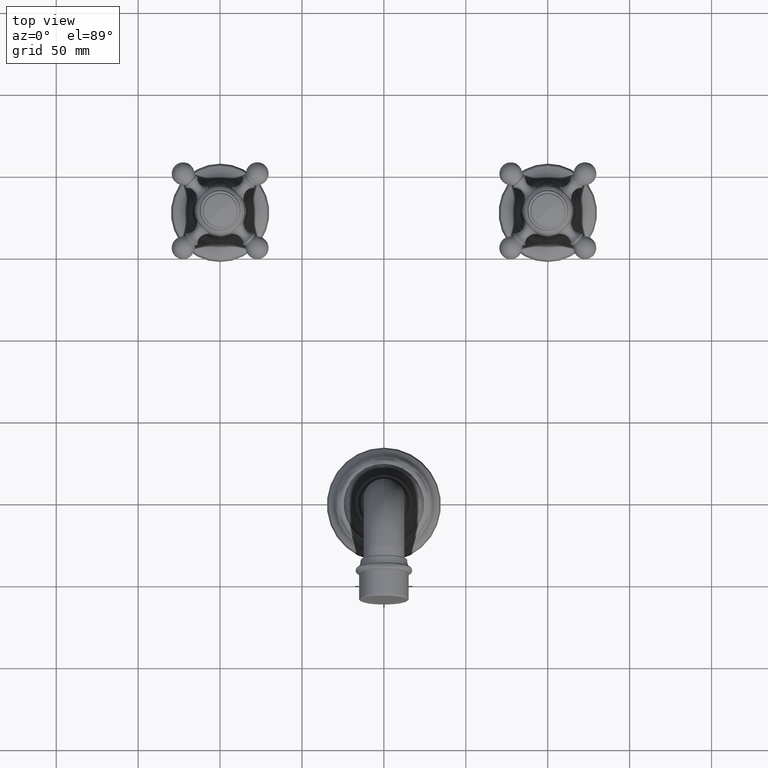
[diagram: clean part render]
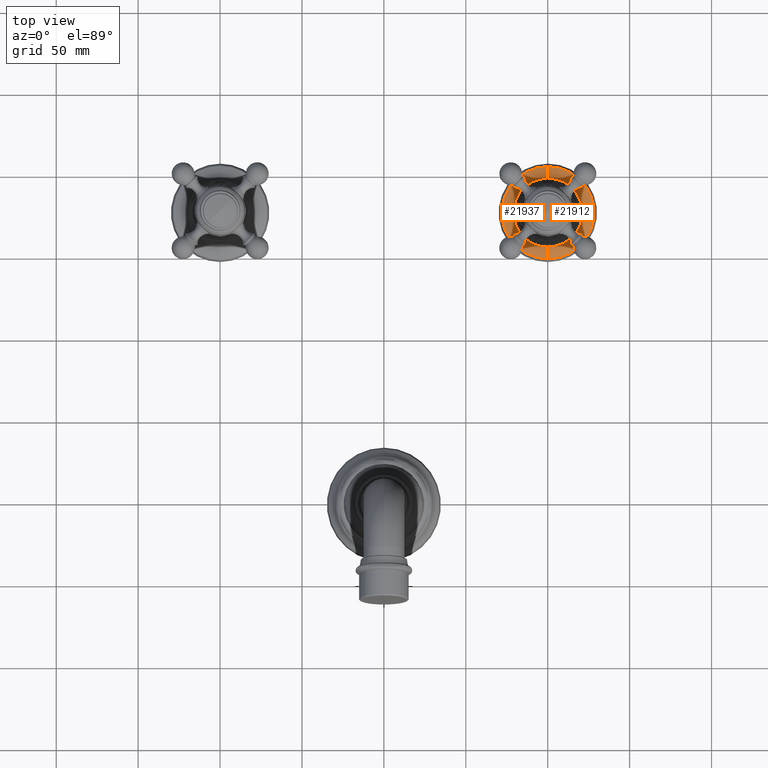
[diagram: same view with one multi-face feature highlighted, each face labeled with its STEP entity id]
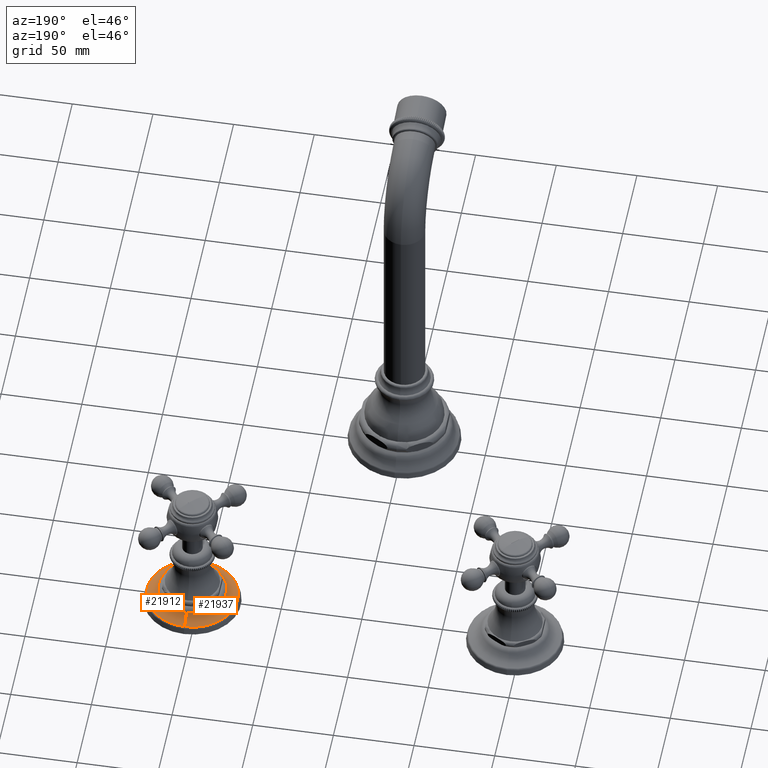
[diagram: same view with one multi-face feature highlighted, each face labeled with its STEP entity id]
A machine part, top view. The highlighted faces form ONE feature: a constant-radius fillet chain: 2 tangent blend faces with common blend radius 12.192 mm. The faces share edges in the B-rep.
A second angle (auxiliary view) of the same feature is appended — it is thin or edge-on in the first view.
Their STEP definitions:
[1] entity #21912 (Torus):
#18073=CARTESIAN_POINT('',(3.94E0,7.E0,3.827780625695E-1));
#18074=DIRECTION('',(0.E0,0.E0,1.E0));
#18075=DIRECTION('',(0.E0,-1.E0,0.E0));
#18076=AXIS2_PLACEMENT_3D('',#18073,#18074,#18075);
#18081=CARTESIAN_POINT('',(3.94E0,7.E0,1.777645915596E-1));
#18082=DIRECTION('',(0.E0,0.E0,1.E0));
#18083=DIRECTION('',(0.E0,-1.E0,0.E0));
#18084=AXIS2_PLACEMENT_3D('',#18081,#18082,#18083);
#18097=CARTESIAN_POINT('',(3.94E0,5.766782358654E0,6.414454127362E-1));
#18098=DIRECTION('',(1.E0,0.E0,0.E0));
#18099=DIRECTION('',(0.E0,2.585356740595E-1,-9.660017107845E-1));
#18100=AXIS2_PLACEMENT_3D('',#18097,#18098,#18099);
#18113=CARTESIAN_POINT('',(3.94E0,8.233217641346E0,6.414454127362E-1));
#18114=DIRECTION('',(-1.E0,0.E0,0.E0));
#18115=DIRECTION('',(0.E0,-2.585356740594E-1,-9.660017107845E-1));
#18116=AXIS2_PLACEMENT_3D('',#18113,#18114,#18115);
#19265=CARTESIAN_POINT('',(3.94E0,8.109120517797E0,1.777645915596E-1));
#19266=CARTESIAN_POINT('',(3.94E0,5.890879482203E0,1.777645915596E-1));
#19267=VERTEX_POINT('',#19265);
#19268=VERTEX_POINT('',#19266);
#19273=CARTESIAN_POINT('',(3.94E0,6.171122811686E0,3.827780625695E-1));
#19274=CARTESIAN_POINT('',(3.94E0,7.828877188314E0,3.827780625695E-1));
#19275=VERTEX_POINT('',#19273);
#19276=VERTEX_POINT('',#19274);
#21898=CARTESIAN_POINT('',(3.94E0,7.E0,6.414454127362E-1));
#21899=DIRECTION('',(0.E0,0.E0,-1.E0));
#21900=DIRECTION('',(0.E0,-1.E0,0.E0));
#21901=AXIS2_PLACEMENT_3D('',#21898,#21899,#21900);
#21902=TOROIDAL_SURFACE('',#21901,1.233217641346E0,4.8E-1);
#21903=ORIENTED_EDGE('',*,*,#21880,.T.);
#21905=ORIENTED_EDGE('',*,*,#21904,.F.);
#21907=ORIENTED_EDGE('',*,*,#21906,.F.);
#21909=ORIENTED_EDGE('',*,*,#21908,.T.);
#21910=EDGE_LOOP('',(#21903,#21905,#21907,#21909));
#21911=FACE_OUTER_BOUND('',#21910,.F.);
#18077=CIRCLE('',#18076,8.288771883144E-1);
#18085=CIRCLE('',#18084,1.109120517797E0);
#18101=CIRCLE('',#18100,4.8E-1);
#18117=CIRCLE('',#18116,4.8E-1);
#21880=EDGE_CURVE('',#19275,#19276,#18077,.T.);
#21904=EDGE_CURVE('',#19267,#19276,#18117,.T.);
#21906=EDGE_CURVE('',#19268,#19267,#18085,.T.);
#21908=EDGE_CURVE('',#19268,#19275,#18101,.T.);
#21912=ADVANCED_FACE('',(#21911),#21902,.F.);
[2] entity #21937 (Torus):
#18089=CARTESIAN_POINT('',(3.94E0,7.E0,3.827780625695E-1));
#18090=DIRECTION('',(0.E0,0.E0,1.E0));
#18091=DIRECTION('',(0.E0,1.E0,0.E0));
#18092=AXIS2_PLACEMENT_3D('',#18089,#18090,#18091);
#18097=CARTESIAN_POINT('',(3.94E0,5.766782358654E0,6.414454127362E-1));
#18098=DIRECTION('',(1.E0,0.E0,0.E0));
#18099=DIRECTION('',(0.E0,2.585356740595E-1,-9.660017107845E-1));
#18100=AXIS2_PLACEMENT_3D('',#18097,#18098,#18099);
#18105=CARTESIAN_POINT('',(3.94E0,7.E0,1.777645915596E-1));
#18106=DIRECTION('',(0.E0,0.E0,1.E0));
#18107=DIRECTION('',(0.E0,1.E0,0.E0));
#18108=AXIS2_PLACEMENT_3D('',#18105,#18106,#18107);
#18113=CARTESIAN_POINT('',(3.94E0,8.233217641346E0,6.414454127362E-1));
#18114=DIRECTION('',(-1.E0,0.E0,0.E0));
#18115=DIRECTION('',(0.E0,-2.585356740594E-1,-9.660017107845E-1));
#18116=AXIS2_PLACEMENT_3D('',#18113,#18114,#18115);
#19265=CARTESIAN_POINT('',(3.94E0,8.109120517797E0,1.777645915596E-1));
#19266=CARTESIAN_POINT('',(3.94E0,5.890879482203E0,1.777645915596E-1));
#19267=VERTEX_POINT('',#19265);
#19268=VERTEX_POINT('',#19266);
#19273=CARTESIAN_POINT('',(3.94E0,6.171122811686E0,3.827780625695E-1));
#19274=CARTESIAN_POINT('',(3.94E0,7.828877188314E0,3.827780625695E-1));
#19275=VERTEX_POINT('',#19273);
#19276=VERTEX_POINT('',#19274);
#21925=CARTESIAN_POINT('',(3.94E0,7.E0,6.414454127362E-1));
#21926=DIRECTION('',(0.E0,0.E0,-1.E0));
#21927=DIRECTION('',(0.E0,-1.E0,0.E0));
#21928=AXIS2_PLACEMENT_3D('',#21925,#21926,#21927);
#21929=TOROIDAL_SURFACE('',#21928,1.233217641346E0,4.8E-1);
#21930=ORIENTED_EDGE('',*,*,#21854,.T.);
#21931=ORIENTED_EDGE('',*,*,#21908,.F.);
#21933=ORIENTED_EDGE('',*,*,#21932,.F.);
#21934=ORIENTED_EDGE('',*,*,#21904,.T.);
#21935=EDGE_LOOP('',(#21930,#21931,#21933,#21934));
#21936=FACE_OUTER_BOUND('',#21935,.F.);
#18093=CIRCLE('',#18092,8.288771883144E-1);
#18101=CIRCLE('',#18100,4.8E-1);
#18109=CIRCLE('',#18108,1.109120517797E0);
#18117=CIRCLE('',#18116,4.8E-1);
#21854=EDGE_CURVE('',#19276,#19275,#18093,.T.);
#21904=EDGE_CURVE('',#19267,#19276,#18117,.T.);
#21908=EDGE_CURVE('',#19268,#19275,#18101,.T.);
#21932=EDGE_CURVE('',#19267,#19268,#18109,.T.);
#21937=ADVANCED_FACE('',(#21936),#21929,.F.);